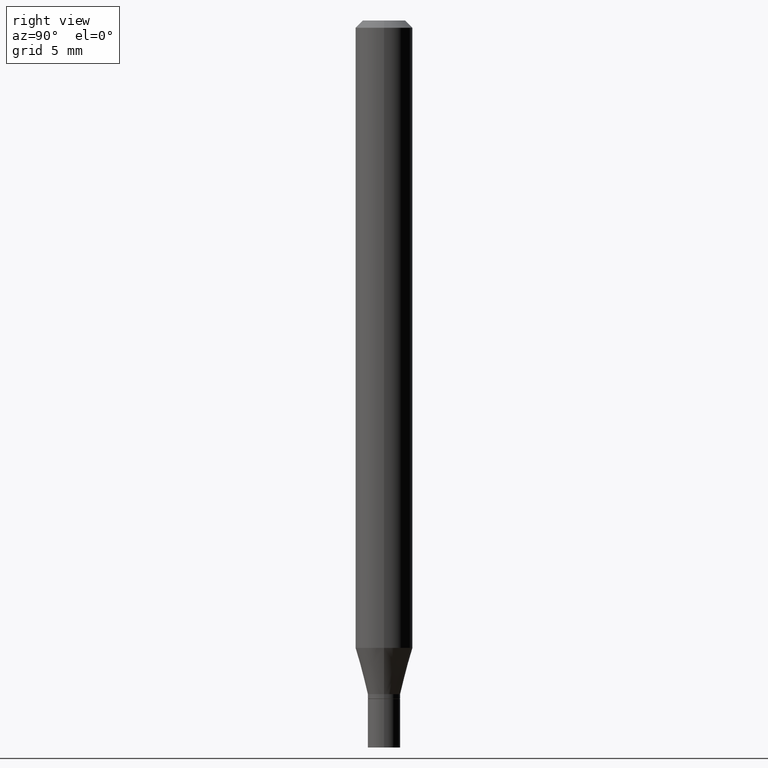
[diagram: clean part render]
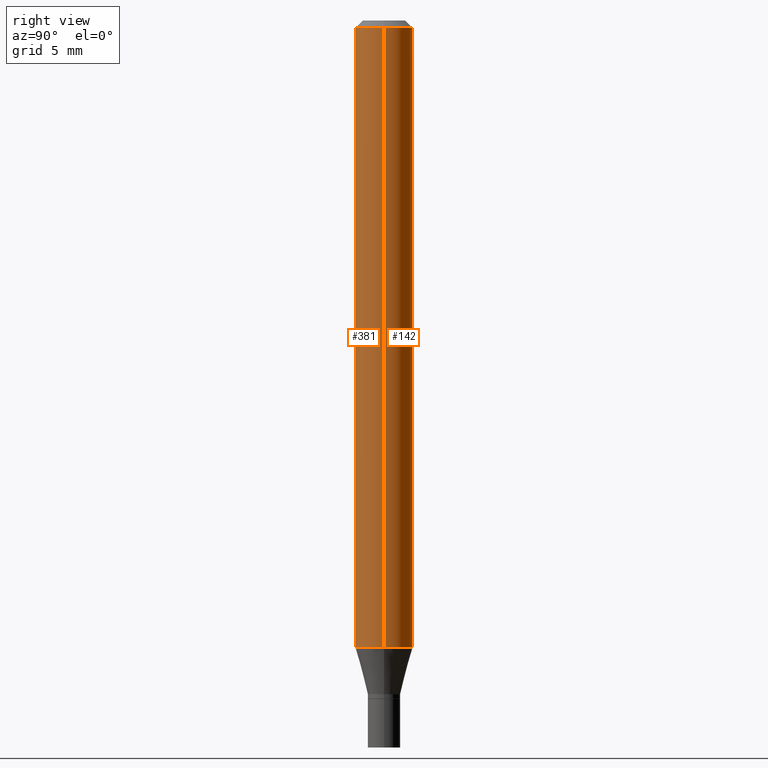
[diagram: same view with one multi-face feature highlighted, each face labeled with its STEP entity id]
A machine part, right view. The highlighted faces form ONE feature: a constant-radius fillet chain: 2 tangent blend faces with common blend radius 1.4999 mm. The faces share edges in the B-rep.
Their STEP definitions:
[1] entity #142 (Cylinder):
#11 = CARTESIAN_POINT ( 'NONE',  ( 3.668203209277705088E-31, -5.237222008264718399E-17, -0.01499999999999999944 ) ) ;
#23 = CARTESIAN_POINT ( 'NONE',  ( -0.05904999999999999832, -1.866401217467881029E-15, -0.01499999999999999944 ) ) ;
#42 = DIRECTION ( 'NONE',  ( 1.000000000000000000, -6.982962677686273021E-15, 0.000000000000000000 ) ) ;
#47 = CARTESIAN_POINT ( 'NONE',  ( 3.165560326472339188E-29, -4.519581185785793570E-15, -1.294459499326235941 ) ) ;
#63 = DIRECTION ( 'NONE',  ( -2.445468806185136877E-29, 3.491481338843145188E-15, 1.000000000000000000 ) ) ;
#64 = CIRCLE ( 'NONE', #413, 0.05904999999999999832 ) ;
#75 = DIRECTION ( 'NONE',  ( -2.445468806185136597E-29, 3.491481338843145583E-15, 1.000000000000000000 ) ) ;
#77 = ORIENTED_EDGE ( 'NONE', *, *, #159, .T. ) ;
#81 = CIRCLE ( 'NONE', #345, 0.05904999999999999832 ) ;
#87 = DIRECTION ( 'NONE',  ( -2.445468806185136877E-29, 3.491481338843145188E-15, 1.000000000000000000 ) ) ;
#92 = EDGE_LOOP ( 'NONE', ( #282, #77, #419, #255 ) ) ;
#113 = VERTEX_POINT ( 'NONE', #423 ) ;
#122 = DIRECTION ( 'NONE',  ( -2.445468806185136597E-29, 3.491481338843145583E-15, 1.000000000000000000 ) ) ;
#142 = ADVANCED_FACE ( 'NONE', ( #448 ), #250, .T. ) ;
#155 = DIRECTION ( 'NONE',  ( -2.445468806185136597E-29, 3.491481338843145583E-15, 1.000000000000000000 ) ) ;
#156 = DIRECTION ( 'NONE',  ( 1.000000000000000000, -6.982962677686266711E-15, 0.000000000000000000 ) ) ;
#159 = EDGE_CURVE ( 'NONE', #113, #163, #409, .T. ) ;
#163 = VERTEX_POINT ( 'NONE', #23 ) ;
#172 = EDGE_CURVE ( 'NONE', #284, #181, #239, .T. ) ;
#181 = VERTEX_POINT ( 'NONE', #457 ) ;
#215 = CARTESIAN_POINT ( 'NONE',  ( -0.05904999999999999832, 4.195754854663391478E-16, -2.904631170795521892E-30 ) ) ;
#239 = LINE ( 'NONE', #321, #253 ) ;
#250 = CYLINDRICAL_SURFACE ( 'NONE', #320, 0.05904999999999999832 ) ;
#253 = VECTOR ( 'NONE', #63, 39.37007874015748143 ) ;
#255 = ORIENTED_EDGE ( 'NONE', *, *, #172, .F. ) ;
#273 = DIRECTION ( 'NONE',  ( 1.000000000000000000, -6.982962677686266711E-15, 4.876176775795936353E-29 ) ) ;
#282 = ORIENTED_EDGE ( 'NONE', *, *, #336, .T. ) ;
#284 = VERTEX_POINT ( 'NONE', #433 ) ;
#314 = CARTESIAN_POINT ( 'NONE',  ( 0.000000000000000000, 0.000000000000000000, 0.000000000000000000 ) ) ;
#320 = AXIS2_PLACEMENT_3D ( 'NONE', #314, #122, #273 ) ;
#321 = CARTESIAN_POINT ( 'NONE',  ( 0.05904999999999999832, -4.123439461173740327E-16, 2.879382386107500220E-30 ) ) ;
#336 = EDGE_CURVE ( 'NONE', #284, #113, #81, .T. ) ;
#345 = AXIS2_PLACEMENT_3D ( 'NONE', #47, #75, #42 ) ;
#389 = VECTOR ( 'NONE', #87, 39.37007874015748143 ) ;
#390 = EDGE_CURVE ( 'NONE', #181, #163, #64, .T. ) ;
#409 = LINE ( 'NONE', #215, #389 ) ;
#413 = AXIS2_PLACEMENT_3D ( 'NONE', #11, #155, #156 ) ;
#419 = ORIENTED_EDGE ( 'NONE', *, *, #390, .F. ) ;
#423 = CARTESIAN_POINT ( 'NONE',  ( -0.05904999999999999832, -4.100005700319454866E-15, -1.294459499326235941 ) ) ;
#433 = CARTESIAN_POINT ( 'NONE',  ( 0.05904999999999999832, -4.931925131903167702E-15, -1.294459499326235941 ) ) ;
#448 = FACE_OUTER_BOUND ( 'NONE', #92, .T. ) ;
#457 = CARTESIAN_POINT ( 'NONE',  ( 0.05904999999999999832, -4.647161662000212105E-16, -0.01499999999999999944 ) ) ;
[2] entity #381 (Cylinder):
#21 = ORIENTED_EDGE ( 'NONE', *, *, #159, .F. ) ;
#23 = CARTESIAN_POINT ( 'NONE',  ( -0.05904999999999999832, -1.866401217467881029E-15, -0.01499999999999999944 ) ) ;
#44 = DIRECTION ( 'NONE',  ( -2.445468806185136597E-29, 3.491481338843145583E-15, 1.000000000000000000 ) ) ;
#55 = ORIENTED_EDGE ( 'NONE', *, *, #56, .F. ) ;
#56 = EDGE_CURVE ( 'NONE', #163, #181, #135, .T. ) ;
#63 = DIRECTION ( 'NONE',  ( -2.445468806185136877E-29, 3.491481338843145188E-15, 1.000000000000000000 ) ) ;
#79 = ORIENTED_EDGE ( 'NONE', *, *, #347, .T. ) ;
#87 = DIRECTION ( 'NONE',  ( -2.445468806185136877E-29, 3.491481338843145188E-15, 1.000000000000000000 ) ) ;
#113 = VERTEX_POINT ( 'NONE', #423 ) ;
#135 = CIRCLE ( 'NONE', #190, 0.05904999999999999832 ) ;
#159 = EDGE_CURVE ( 'NONE', #113, #163, #409, .T. ) ;
#163 = VERTEX_POINT ( 'NONE', #23 ) ;
#172 = EDGE_CURVE ( 'NONE', #284, #181, #239, .T. ) ;
#177 = CARTESIAN_POINT ( 'NONE',  ( 3.668203209277705088E-31, -5.237222008264718399E-17, -0.01499999999999999944 ) ) ;
#181 = VERTEX_POINT ( 'NONE', #457 ) ;
#190 = AXIS2_PLACEMENT_3D ( 'NONE', #177, #323, #458 ) ;
#215 = CARTESIAN_POINT ( 'NONE',  ( -0.05904999999999999832, 4.195754854663391478E-16, -2.904631170795521892E-30 ) ) ;
#239 = LINE ( 'NONE', #321, #253 ) ;
#245 = ORIENTED_EDGE ( 'NONE', *, *, #172, .T. ) ;
#253 = VECTOR ( 'NONE', #63, 39.37007874015748143 ) ;
#268 = DIRECTION ( 'NONE',  ( 1.000000000000000000, -6.982962677686273021E-15, 0.000000000000000000 ) ) ;
#271 = FACE_OUTER_BOUND ( 'NONE', #326, .T. ) ;
#284 = VERTEX_POINT ( 'NONE', #433 ) ;
#287 = CIRCLE ( 'NONE', #369, 0.05904999999999999832 ) ;
#321 = CARTESIAN_POINT ( 'NONE',  ( 0.05904999999999999832, -4.123439461173740327E-16, 2.879382386107500220E-30 ) ) ;
#323 = DIRECTION ( 'NONE',  ( -2.445468806185136597E-29, 3.491481338843145583E-15, 1.000000000000000000 ) ) ;
#326 = EDGE_LOOP ( 'NONE', ( #21, #79, #245, #55 ) ) ;
#338 = DIRECTION ( 'NONE',  ( 1.000000000000000000, -6.982962677686266711E-15, 4.876176775795936353E-29 ) ) ;
#347 = EDGE_CURVE ( 'NONE', #113, #284, #287, .T. ) ;
#369 = AXIS2_PLACEMENT_3D ( 'NONE', #400, #373, #268 ) ;
#370 = CYLINDRICAL_SURFACE ( 'NONE', #394, 0.05904999999999999832 ) ;
#373 = DIRECTION ( 'NONE',  ( -2.445468806185136597E-29, 3.491481338843145583E-15, 1.000000000000000000 ) ) ;
#381 = ADVANCED_FACE ( 'NONE', ( #271 ), #370, .T. ) ;
#389 = VECTOR ( 'NONE', #87, 39.37007874015748143 ) ;
#394 = AXIS2_PLACEMENT_3D ( 'NONE', #403, #44, #338 ) ;
#400 = CARTESIAN_POINT ( 'NONE',  ( 3.165560326472339188E-29, -4.519581185785793570E-15, -1.294459499326235941 ) ) ;
#403 = CARTESIAN_POINT ( 'NONE',  ( 0.000000000000000000, 0.000000000000000000, 0.000000000000000000 ) ) ;
#409 = LINE ( 'NONE', #215, #389 ) ;
#423 = CARTESIAN_POINT ( 'NONE',  ( -0.05904999999999999832, -4.100005700319454866E-15, -1.294459499326235941 ) ) ;
#433 = CARTESIAN_POINT ( 'NONE',  ( 0.05904999999999999832, -4.931925131903167702E-15, -1.294459499326235941 ) ) ;
#457 = CARTESIAN_POINT ( 'NONE',  ( 0.05904999999999999832, -4.647161662000212105E-16, -0.01499999999999999944 ) ) ;
#458 = DIRECTION ( 'NONE',  ( 1.000000000000000000, -6.982962677686266711E-15, 0.000000000000000000 ) ) ;